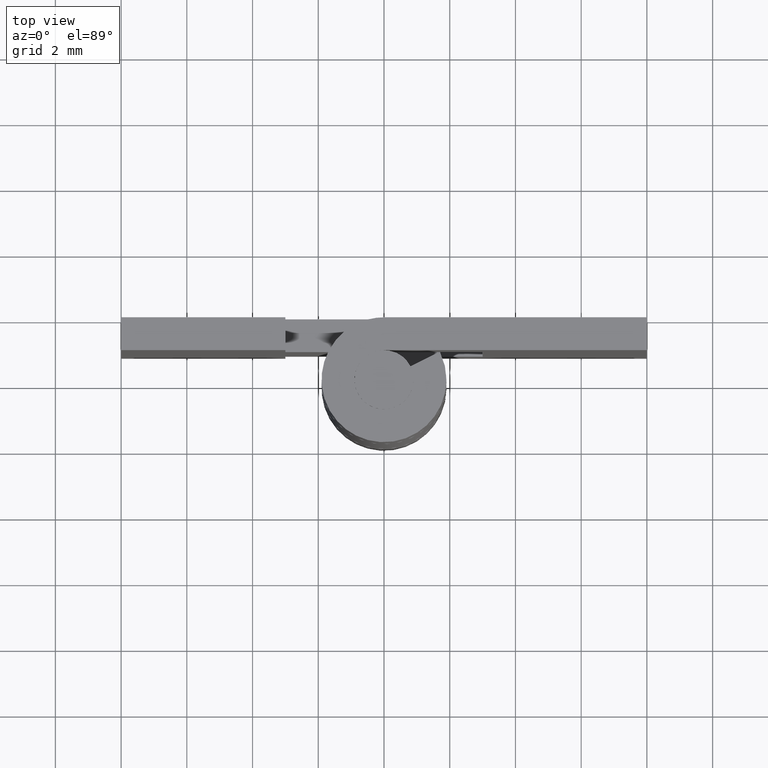
[diagram: clean part render]
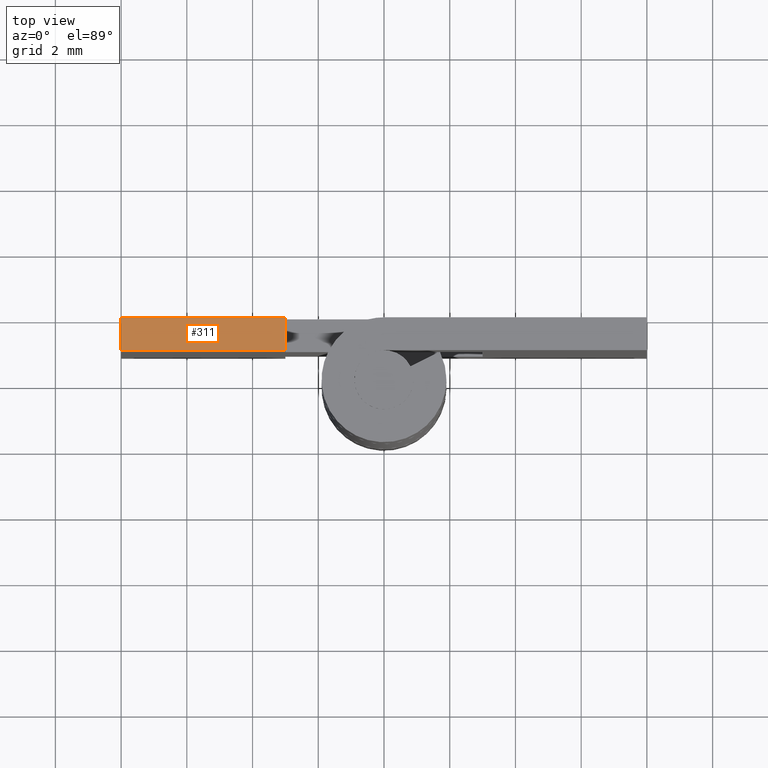
[diagram: same view with one face highlighted and labeled with its STEP entity id]
A machine part, top view. The second image highlights one B-rep face of the part: STEP entity #311.
In plain terms, the highlighted face is a freeform B-spline surface patch.
Its self-contained STEP definition (entity closure, byte-faithful):
#234=CARTESIAN_POINT('',(-3.0,1.900002000000000,15.0));
#235=VERTEX_POINT('',#234);
#241=CARTESIAN_POINT('',(-3.0,0.900001999999955,15.0));
#242=VERTEX_POINT('',#241);
#243=CARTESIAN_POINT('',(-3.0,0.900001999999955,15.0));
#244=CARTESIAN_POINT('',(-3.0,1.900002000000000,15.0));
#245=QUASI_UNIFORM_CURVE('',1,(#243,#244),.UNSPECIFIED.,.F.,.U.);
#246=EDGE_CURVE('',#242,#235,#245,.T.);
#270=CARTESIAN_POINT('',(-8.0,0.900002000000000,15.0));
#271=VERTEX_POINT('',#270);
#277=CARTESIAN_POINT('',(-8.0,1.900002000000000,15.0));
#278=VERTEX_POINT('',#277);
#279=CARTESIAN_POINT('',(-8.0,0.900002000000000,15.0));
#280=CARTESIAN_POINT('',(-8.0,1.900002000000000,15.0));
#281=QUASI_UNIFORM_CURVE('',1,(#279,#280),.UNSPECIFIED.,.F.,.U.);
#282=EDGE_CURVE('',#271,#278,#281,.T.);
#292=CARTESIAN_POINT('',(-8.249749990309029,0.850052001938147,15.0));
#293=CARTESIAN_POINT('',(-2.750249875580519,0.850052001938147,15.0));
#294=CARTESIAN_POINT('',(-8.249749990309029,1.949952024883898,15.0));
#295=CARTESIAN_POINT('',(-2.750249875580519,1.949952024883898,15.0));
#296=B_SPLINE_SURFACE_WITH_KNOTS('',1,1,((#292,#294),(#293,#295)),.UNSPECIFIED.,.F.,.F.,.U.,(2,2),(2,2),(0.0,5.499500114728511),(0.041708334948495,0.958291687403247),.UNSPECIFIED.);
#297=ORIENTED_EDGE('',*,*,#246,.T.);
#298=CARTESIAN_POINT('',(-8.0,1.900002000000000,15.0));
#299=CARTESIAN_POINT('',(-3.0,1.900002000000000,15.0));
#300=QUASI_UNIFORM_CURVE('',1,(#298,#299),.UNSPECIFIED.,.F.,.U.);
#301=EDGE_CURVE('',#278,#235,#300,.T.);
#302=ORIENTED_EDGE('',*,*,#301,.F.);
#303=ORIENTED_EDGE('',*,*,#282,.F.);
#304=CARTESIAN_POINT('',(-3.0,0.900001999999955,15.0));
#305=CARTESIAN_POINT('',(-8.0,0.900002000000000,15.0));
#306=QUASI_UNIFORM_CURVE('',1,(#304,#305),.UNSPECIFIED.,.F.,.U.);
#307=EDGE_CURVE('',#242,#271,#306,.T.);
#308=ORIENTED_EDGE('',*,*,#307,.F.);
#309=EDGE_LOOP('',(#297,#302,#303,#308));
#310=FACE_OUTER_BOUND('',#309,.T.);
#311=ADVANCED_FACE('',(#310),#296,.T.);